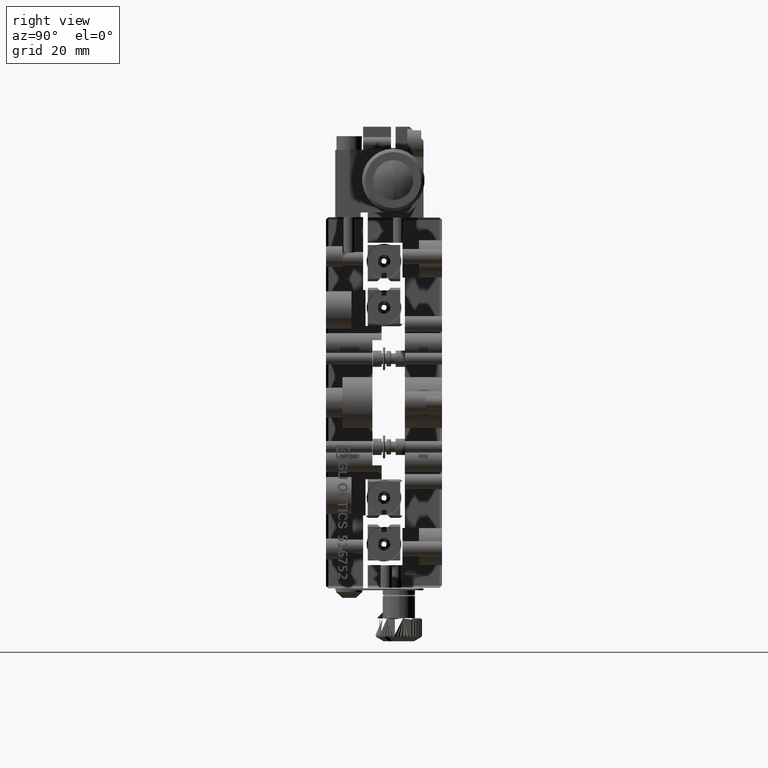
[diagram: clean part render]
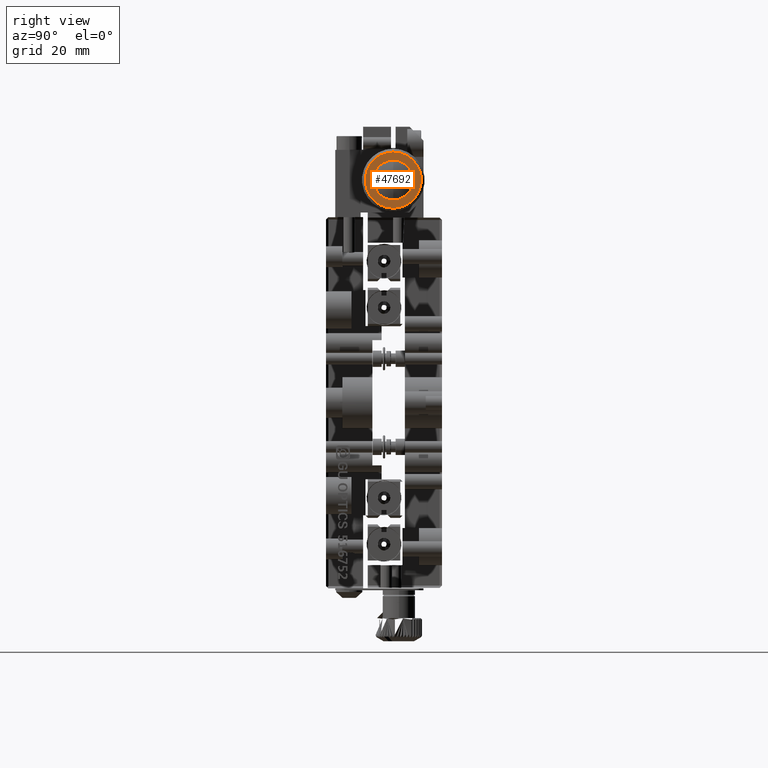
[diagram: same view with one face highlighted and labeled with its STEP entity id]
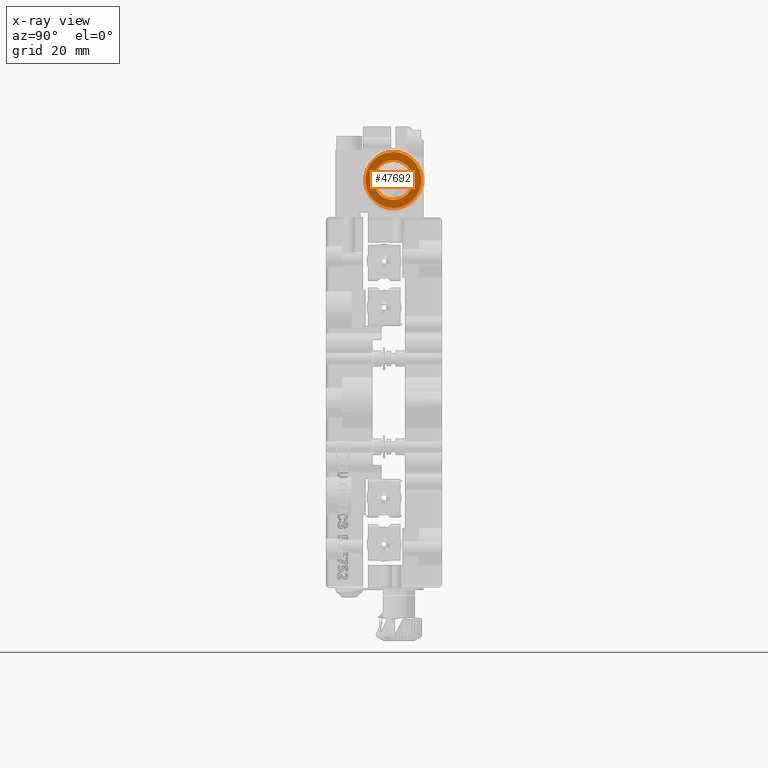
[diagram: x-ray of the same camera — body ghosted, the highlighted face saturated]
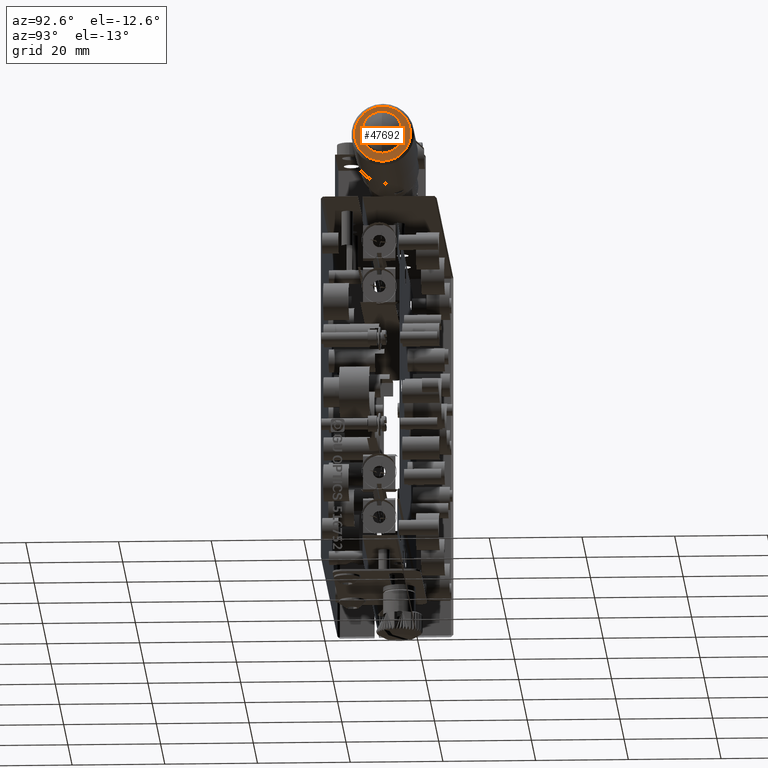
[diagram: same view with one face highlighted and labeled with its STEP entity id]
A machine part, right view. The second image highlights one B-rep face of the part: STEP entity #47692.
The next image is the same camera in x-ray: the body ghosted, the highlighted face saturated — about 0% of this face is hidden behind the body in this view.
A second angle (auxiliary view) of the same face is appended — the face is thin or edge-on in the first view.
In plain terms, the highlighted planar face has unit normal (1, -0, 0).
Its self-contained STEP definition (entity closure, byte-faithful):
#1102 = CARTESIAN_POINT ( 'NONE',  ( 65.20000000006120900, 14.49999999999999800, 47.99999999999998600 ) ) ;
#1432 = CIRCLE ( 'NONE', #2303, 6.049999999961086100 ) ;
#2303 = AXIS2_PLACEMENT_3D ( 'NONE', #1102, #35864, #6147 ) ;
#4535 = DIRECTION ( 'NONE',  ( -1.000000000000000000, -0.0000000000000000000, -0.0000000000000000000 ) ) ;
#5649 = CARTESIAN_POINT ( 'NONE',  ( 65.20000000006120900, 14.49999999999999800, 54.04999999996107400 ) ) ;
#5950 = CARTESIAN_POINT ( 'NONE',  ( 65.20000000006120900, 14.49999999999999800, 41.95000000003889800 ) ) ;
#6147 = DIRECTION ( 'NONE',  ( 0.0000000000000000000, 0.0000000000000000000, 1.000000000000000000 ) ) ;
#6316 = PLANE ( 'NONE',  #33032 ) ;
#6816 = ORIENTED_EDGE ( 'NONE', *, *, #18765, .T. ) ;
#8673 = ORIENTED_EDGE ( 'NONE', *, *, #49943, .F. ) ;
#10222 = VERTEX_POINT ( 'NONE', #48923 ) ;
#10567 = EDGE_CURVE ( 'NONE', #61094, #53688, #14416, .T. ) ;
#11317 = DIRECTION ( 'NONE',  ( 0.0000000000000000000, 0.0000000000000000000, -1.000000000000000000 ) ) ;
#13171 = ORIENTED_EDGE ( 'NONE', *, *, #51415, .T. ) ;
#14416 = CIRCLE ( 'NONE', #62436, 6.049999999961086100 ) ;
#18765 = EDGE_CURVE ( 'NONE', #10222, #60368, #35562, .T. ) ;
#27701 = EDGE_LOOP ( 'NONE', ( #13171, #6816 ) ) ;
#28223 = ORIENTED_EDGE ( 'NONE', *, *, #10567, .F. ) ;
#33032 = AXIS2_PLACEMENT_3D ( 'NONE', #36028, #40993, #11317 ) ;
#34252 = CARTESIAN_POINT ( 'NONE',  ( 65.20000000000000300, 14.49999999999999800, 47.99999999999998600 ) ) ;
#35562 = CIRCLE ( 'NONE', #48602, 4.300003000000080200 ) ;
#35864 = DIRECTION ( 'NONE',  ( -1.000000000000000000, 0.0000000000000000000, 0.0000000000000000000 ) ) ;
#36028 = CARTESIAN_POINT ( 'NONE',  ( 65.20000000000000300, 18.80000300000007800, 47.99999999999998600 ) ) ;
#38109 = DIRECTION ( 'NONE',  ( 0.0000000000000000000, 0.0000000000000000000, -1.000000000000000000 ) ) ;
#38171 = DIRECTION ( 'NONE',  ( -1.000000000000000000, -0.0000000000000000000, -0.0000000000000000000 ) ) ;
#38184 = CARTESIAN_POINT ( 'NONE',  ( 65.20000000000000300, 14.49999999999999800, 47.99999999999998600 ) ) ;
#39197 = DIRECTION ( 'NONE',  ( 0.0000000000000000000, 0.0000000000000000000, -1.000000000000000000 ) ) ;
#40993 = DIRECTION ( 'NONE',  ( 1.000000000000000000, -0.0000000000000000000, 0.0000000000000000000 ) ) ;
#41792 = CIRCLE ( 'NONE', #51473, 4.300003000000080200 ) ;
#45823 = FACE_OUTER_BOUND ( 'NONE', #53644, .T. ) ;
#47692 = ADVANCED_FACE ( 'NONE', ( #60074, #45823 ), #6316, .T. ) ;
#48602 = AXIS2_PLACEMENT_3D ( 'NONE', #38184, #38171, #38109 ) ;
#48923 = CARTESIAN_POINT ( 'NONE',  ( 65.20000000000000300, 14.49999999999999800, 52.30000300000006800 ) ) ;
#49943 = EDGE_CURVE ( 'NONE', #53688, #61094, #1432, .T. ) ;
#51415 = EDGE_CURVE ( 'NONE', #60368, #10222, #41792, .T. ) ;
#51473 = AXIS2_PLACEMENT_3D ( 'NONE', #34252, #4535, #39197 ) ;
#52876 = CARTESIAN_POINT ( 'NONE',  ( 65.20000000000000300, 14.49999999999999800, 43.69999699999990400 ) ) ;
#53644 = EDGE_LOOP ( 'NONE', ( #28223, #8673 ) ) ;
#53688 = VERTEX_POINT ( 'NONE', #5950 ) ;
#59431 = DIRECTION ( 'NONE',  ( 0.0000000000000000000, 0.0000000000000000000, 1.000000000000000000 ) ) ;
#59477 = DIRECTION ( 'NONE',  ( -1.000000000000000000, 0.0000000000000000000, 0.0000000000000000000 ) ) ;
#59494 = CARTESIAN_POINT ( 'NONE',  ( 65.20000000006120900, 14.49999999999999800, 47.99999999999998600 ) ) ;
#60074 = FACE_BOUND ( 'NONE', #27701, .T. ) ;
#60368 = VERTEX_POINT ( 'NONE', #52876 ) ;
#61094 = VERTEX_POINT ( 'NONE', #5649 ) ;
#62436 = AXIS2_PLACEMENT_3D ( 'NONE', #59494, #59477, #59431 ) ;